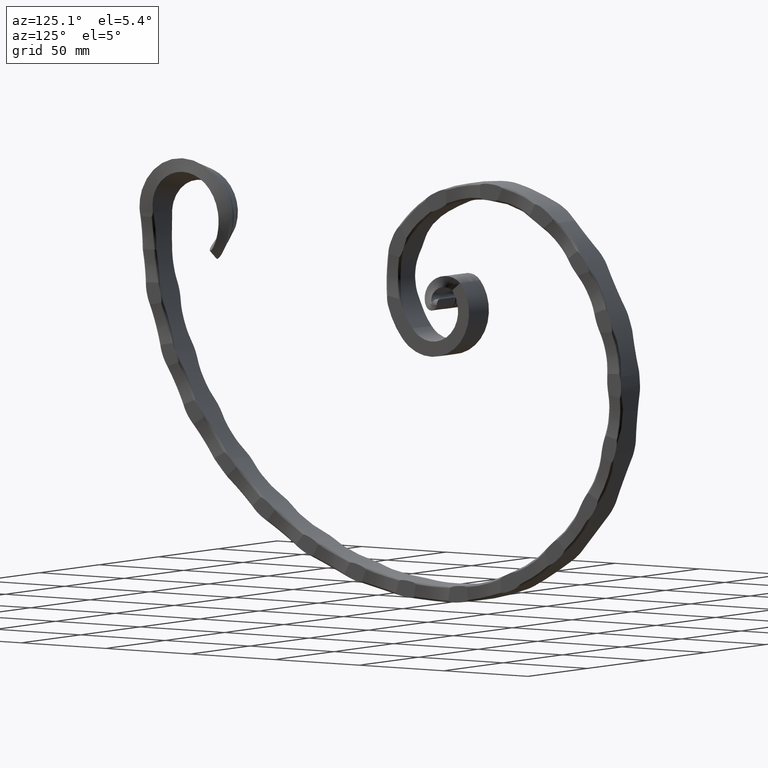
[diagram: clean part render]
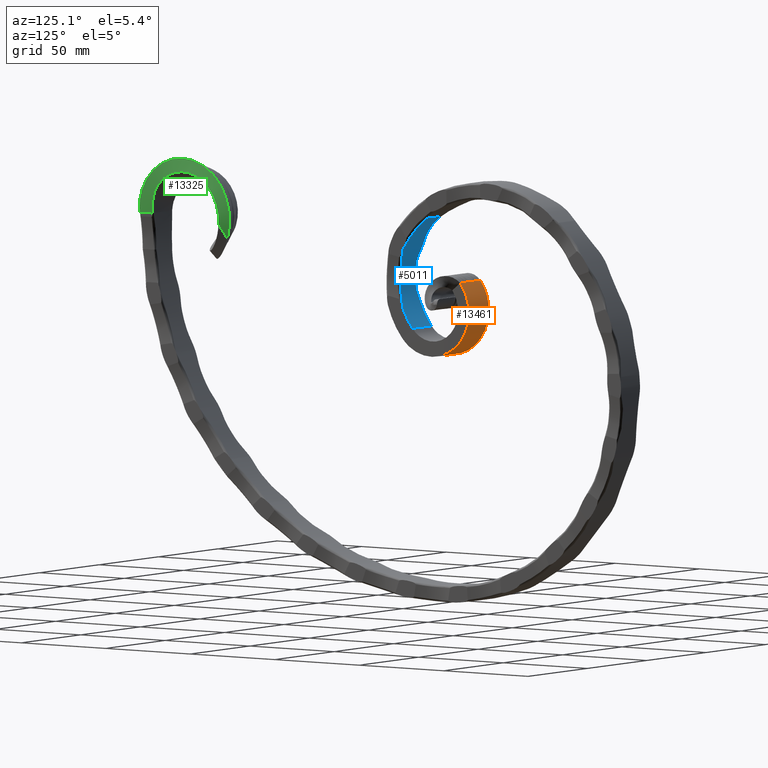
[diagram: same view with three faces highlighted in distinct colors, each labeled with its STEP entity id]
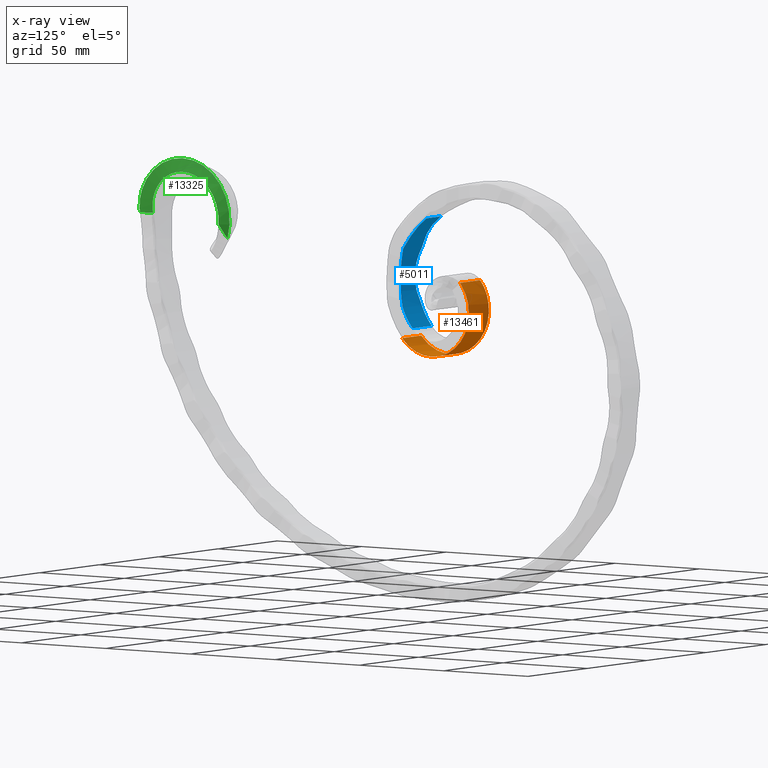
[diagram: x-ray of the same camera — body ghosted, the three highlighted faces saturated]
A machine part, auxiliary view with three faces highlighted in distinct colors.
The next image is the same camera in x-ray (body ghosted, the three faces saturated) — at least one of them is partly hidden behind the body in this view.
Their STEP definitions:

[orange] entity #13461 — the highlighted face is a freeform B-spline surface patch.
#313 = CARTESIAN_POINT ( 'NONE',  ( 1.504227517978284200, 190.0010750538671400, 53.36071729016551800 ) ) ;
#627 = CARTESIAN_POINT ( 'NONE',  ( 8.166600478617244400, 176.5207333990191500, 16.56066125691241100 ) ) ;
#691 = CARTESIAN_POINT ( 'NONE',  ( -2.501398153187990700, 190.0000000000000900, 53.36217639897318300 ) ) ;
#853 = CARTESIAN_POINT ( 'NONE',  ( -4.499295737616645100, 190.0000000000000000, 53.36217639897316900 ) ) ;
#894 = CARTESIAN_POINT ( 'NONE',  ( 4.509063854233861700, 190.0000000000000000, 53.36217639897316900 ) ) ;
#927 = ORIENTED_EDGE ( 'NONE', *, *, #7551, .T. ) ;
#974 = CARTESIAN_POINT ( 'NONE',  ( -8.371492826464118400, 195.2381940632237400, 36.40100705719835600 ) ) ;
#1402 = CARTESIAN_POINT ( 'NONE',  ( -8.489561530757466600, 190.8765782711007000, 52.17244712415904900 ) ) ;
#1410 = FACE_OUTER_BOUND ( 'NONE', #6916, .T. ) ;
#1490 = CARTESIAN_POINT ( 'NONE',  ( -8.093758625982955500, 166.2433932583059600, 17.27096361387858900 ) ) ;
#1582 = CARTESIAN_POINT ( 'NONE',  ( 8.250066486523588000, 187.2296649215452400, 21.49793674496783400 ) ) ;
#1725 = B_SPLINE_CURVE_WITH_KNOTS ( 'NONE', 3,
 ( #18268, #5945, #8007, #22441 ),
 .UNSPECIFIED., .F., .F.,
 ( 4, 4 ),
 ( 0.0000000000000000000, 1.086922710742409500E-006 ),
 .UNSPECIFIED. ) ;
#1927 = CARTESIAN_POINT ( 'NONE',  ( 4.509102991369862100, 190.0013979576507700, 53.36027903140551100 ) ) ;
#1993 = VERTEX_POINT ( 'NONE', #8462 ) ;
#2224 = CARTESIAN_POINT ( 'NONE',  ( -3.167379767285211800, 190.0005730431487100, 53.36139864046045000 ) ) ;
#2255 = CARTESIAN_POINT ( 'NONE',  ( -8.500000000000000000, 190.0000000000000000, 53.36217639897316900 ) ) ;
#2256 = VERTEX_POINT ( 'NONE', #19808 ) ;
#2538 = VERTEX_POINT ( 'NONE', #16517 ) ;
#2603 = CARTESIAN_POINT ( 'NONE',  ( 8.500000000000001800, 190.0000000000000600, 53.36217639897317600 ) ) ;
#2627 = ORIENTED_EDGE ( 'NONE', *, *, #7042, .T. ) ;
#2693 = CARTESIAN_POINT ( 'NONE',  ( 8.093758625982955500, 166.2433932583059600, 17.27096361387858900 ) ) ;
#2811 = EDGE_CURVE ( 'NONE', #1993, #24160, #26184, .T. ) ;
#2923 = CARTESIAN_POINT ( 'NONE',  ( -4.499300429775051000, 190.0004299150101300, 53.36159290005338800 ) ) ;
#3038 = CARTESIAN_POINT ( 'NONE',  ( -8.437596282033869200, 194.2992014653628400, 45.68952641944746100 ) ) ;
#3268 = EDGE_CURVE ( 'NONE', #18838, #22525, #6176, .T. ) ;
#3474 = CARTESIAN_POINT ( 'NONE',  ( -8.500000000000000000, 190.0000000000000000, 53.36217639897316900 ) ) ;
#3490 = CARTESIAN_POINT ( 'NONE',  ( 6.488271134172028300, 190.0010737567807800, 53.36071905064699900 ) ) ;
#3545 = VECTOR ( 'NONE', #22579, 1000.000000000000000 ) ;
#3564 = CARTESIAN_POINT ( 'NONE',  ( -8.031385994777158600, 158.4201030096489000, 21.36293725900646100 ) ) ;
#3650 = CARTESIAN_POINT ( 'NONE',  ( 8.166600478617244400, 176.5207333990191500, 16.56066125691241100 ) ) ;
#3683 = B_SPLINE_CURVE_WITH_KNOTS ( 'NONE', 3,
 ( #2603, #4680, #17008, #6763, #21169, #8821, #23253, #10901, #25299, #12976, #627, #15031, #2693, #17095, #4774, #19180, #6853 ),
 .UNSPECIFIED., .F., .F.,
 ( 4, 1, 1, 1, 1, 1, 1, 1, 1, 1, 1, 1, 1, 1, 4 ),
 ( 0.0000000000000000000, 0.06359726010367429400, 0.1276426326863242500, 0.1913667241665796300, 0.2546737413265557900, 0.3390879121470574700, 0.4228205871831891000, 0.5063595775084512900, 0.5895929023990300600, 0.6721705151691433900, 0.7547960793870937000, 0.8162611391492387000, 0.8776552787611422400, 0.9390498306199807100, 1.000000000000000000 ),
 .UNSPECIFIED. ) ;
#4209 = CARTESIAN_POINT ( 'NONE',  ( 2.830868357476861200, 190.0012176146330800, 53.36052380062761100 ) ) ;
#4365 = CARTESIAN_POINT ( 'NONE',  ( 3.494188777226149100, 190.0012888950154200, 53.36042705585799000 ) ) ;
#4393 = CARTESIAN_POINT ( 'NONE',  ( 3.494188777226149100, 190.0012888950154200, 53.36042705585799000 ) ) ;
#4523 = CARTESIAN_POINT ( 'NONE',  ( 8.000000000000000000, 155.3834050570477200, 24.60993553751039200 ) ) ;
#4680 = CARTESIAN_POINT ( 'NONE',  ( 8.489561530757466600, 190.8765782711007000, 52.17244712415904900 ) ) ;
#4685 = VERTEX_POINT ( 'NONE', #1927 ) ;
#4774 = CARTESIAN_POINT ( 'NONE',  ( 8.031385994777158600, 158.4201030096489000, 21.36293725900646100 ) ) ;
#4814 = B_SPLINE_CURVE_WITH_KNOTS ( 'NONE', 3,
 ( #10579, #8500, #12658, #313 ),
 .UNSPECIFIED., .F., .F.,
 ( 4, 4 ),
 ( 1.387778780781445700E-017, 1.812398786433405800E-006 ),
 .UNSPECIFIED. ) ;
#4867 = LINE ( 'NONE', #2255, #26412 ) ;
#4907 = EDGE_CURVE ( 'NONE', #25222, #20470, #15556, .T. ) ;
#5037 = CARTESIAN_POINT ( 'NONE',  ( -8.031385994777158600, 158.4201030096489000, 21.36293725900646100 ) ) ;
#5127 = CARTESIAN_POINT ( 'NONE',  ( -8.489561530757466600, 190.8765782711007000, 52.17244712415904900 ) ) ;
#5224 = B_SPLINE_CURVE_WITH_KNOTS ( 'NONE', 3,
 ( #20178, #18000, #9919, #24314 ),
 .UNSPECIFIED., .F., .F.,
 ( 4, 4 ),
 ( 0.0000000000000000000, 2.357078911604333100E-006 ),
 .UNSPECIFIED. ) ;
#5279 = CARTESIAN_POINT ( 'NONE',  ( 5.828521008972643400, 190.0015397422499500, 53.36008659530810400 ) ) ;
#5562 = CARTESIAN_POINT ( 'NONE',  ( -8.437596282033869200, 194.2992014653628400, 45.68952641944746100 ) ) ;
#5575 = CARTESIAN_POINT ( 'NONE',  ( 6.488353323249210500, 190.0000000000000900, 53.36217639897316200 ) ) ;
#5651 = CARTESIAN_POINT ( 'NONE',  ( -8.000000000000000000, 155.3834050570477200, 24.60993553751039500 ) ) ;
#5665 = CARTESIAN_POINT ( 'NONE',  ( -8.500000000000001800, 190.0000000000000600, 53.36217639897317600 ) ) ;
#5746 = CARTESIAN_POINT ( 'NONE',  ( 8.093758625982955500, 166.2433932583059600, 17.27096361387858900 ) ) ;
#5945 = CARTESIAN_POINT ( 'NONE',  ( -2.501412339625785900, 190.0004297381713900, 53.36159314006761200 ) ) ;
#5963 = EDGE_CURVE ( 'NONE', #13410, #7680, #13289, .T. ) ;
#6143 = B_SPLINE_CURVE_WITH_KNOTS ( 'NONE', 3,
 ( #4365, #9030, #25508, #13194 ),
 .UNSPECIFIED., .F., .F.,
 ( 4, 4 ),
 ( 0.0000000000000000000, 2.173927911987842600E-006 ),
 .UNSPECIFIED. ) ;
#6176 = B_SPLINE_CURVE_WITH_KNOTS ( 'NONE', 3,
 ( #7022, #17357, #5037, #19431, #7116, #21516, #9172, #23594, #11250, #25648, #13327, #974, #15371, #3038, #17447, #5127, #19526 ),
 .UNSPECIFIED., .F., .F.,
 ( 4, 1, 1, 1, 1, 1, 1, 1, 1, 1, 1, 1, 1, 1, 4 ),
 ( 0.0000000000000000000, 0.06095016938001929200, 0.1223447212388577600, 0.1837388608507613000, 0.2452039206129063000, 0.3278294848308566100, 0.4104070976009699400, 0.4936404224915487100, 0.5771794128168108400, 0.6609120878529425300, 0.7453262586734441500, 0.8086332758334203700, 0.8723573673136757500, 0.9364027398963257200, 1.000000000000000000 ),
 .UNSPECIFIED. ) ;
#6701 = EDGE_CURVE ( 'NONE', #7680, #10225, #24506, .T. ) ;
#6721 = ORIENTED_EDGE ( 'NONE', *, *, #6701, .T. ) ;
#6763 = CARTESIAN_POINT ( 'NONE',  ( 8.437596282033869200, 194.2992014653628400, 45.68952641944746100 ) ) ;
#6806 = CARTESIAN_POINT ( 'NONE',  ( -4.499297302693197900, 190.0001433049996300, 53.36198189933870900 ) ) ;
#6853 = CARTESIAN_POINT ( 'NONE',  ( 8.000000000000000000, 155.3834050570477200, 24.60993553751039200 ) ) ;
#6916 = EDGE_LOOP ( 'NONE', ( #16931, #18821, #10884, #17402, #21830, #25800, #2627, #20551, #14466, #15024, #6721, #17102, #927, #19100, #12617, #8161 ) ) ;
#7022 = CARTESIAN_POINT ( 'NONE',  ( -8.000000000000000000, 155.3834050570477200, 24.60993553751039500 ) ) ;
#7042 = EDGE_CURVE ( 'NONE', #19721, #18838, #15142, .T. ) ;
#7116 = CARTESIAN_POINT ( 'NONE',  ( -8.093758625982955500, 166.2433932583059600, 17.27096361387858900 ) ) ;
#7368 = CARTESIAN_POINT ( 'NONE',  ( -4.499295737616645100, 190.0000000000000000, 53.36217639897316900 ) ) ;
#7505 = CARTESIAN_POINT ( 'NONE',  ( -2.501419436040292200, 190.0006446072178200, 53.36130151066365100 ) ) ;
#7551 = EDGE_CURVE ( 'NONE', #18345, #2256, #4867, .T. ) ;
#7611 = EDGE_CURVE ( 'NONE', #24160, #19721, #3683, .T. ) ;
#7635 = CARTESIAN_POINT ( 'NONE',  ( -8.371492826464118400, 195.2381940632237400, 36.40100705719835600 ) ) ;
#7680 = VERTEX_POINT ( 'NONE', #15386 ) ;
#7720 = CARTESIAN_POINT ( 'NONE',  ( 8.489561530757466600, 190.8765782711007000, 52.17244712415904900 ) ) ;
#7808 = CARTESIAN_POINT ( 'NONE',  ( 8.031385994777158600, 158.4201030096489000, 21.36293725900646100 ) ) ;
#7977 = CARTESIAN_POINT ( 'NONE',  ( 0.0000000000000000000, 155.3834050570477200, 24.60993553751039500 ) ) ;
#8007 = CARTESIAN_POINT ( 'NONE',  ( -2.501405245335154500, 190.0002148690981600, 53.36188476950350400 ) ) ;
#8161 = ORIENTED_EDGE ( 'NONE', *, *, #8873, .T. ) ;
#8462 = CARTESIAN_POINT ( 'NONE',  ( 6.488353323249210500, 190.0000000000000900, 53.36217639897316200 ) ) ;
#8500 = CARTESIAN_POINT ( 'NONE',  ( 1.504222797207755800, 190.0003583513045300, 53.36169002935658100 ) ) ;
#8560 = EDGE_CURVE ( 'NONE', #2256, #25222, #4814, .T. ) ;
#8821 = CARTESIAN_POINT ( 'NONE',  ( 8.371492826464118400, 195.2381940632237400, 36.40100705719835600 ) ) ;
#8873 = EDGE_CURVE ( 'NONE', #20470, #2538, #6143, .T. ) ;
#9030 = CARTESIAN_POINT ( 'NONE',  ( 3.494211172092763100, 190.0008592634869200, 53.36101017005908200 ) ) ;
#9172 = CARTESIAN_POINT ( 'NONE',  ( -8.166600478617244400, 176.5207333990191500, 16.56066125691241100 ) ) ;
#9701 = CARTESIAN_POINT ( 'NONE',  ( -8.291695045305248300, 191.2778264671960400, 25.83727180326791700 ) ) ;
#9787 = CARTESIAN_POINT ( 'NONE',  ( 8.437596282033869200, 194.2992014653628400, 45.68952641944746100 ) ) ;
#9816 = EDGE_CURVE ( 'NONE', #4685, #23813, #17083, .T. ) ;
#9887 = CARTESIAN_POINT ( 'NONE',  ( 8.000000000000000000, 155.3834050570477200, 24.60993553751039500 ) ) ;
#9919 = CARTESIAN_POINT ( 'NONE',  ( 4.509089934481472100, 190.0009319718918700, 53.36091148712264200 ) ) ;
#10140 = EDGE_CURVE ( 'NONE', #2538, #12933, #12237, .T. ) ;
#10225 = VERTEX_POINT ( 'NONE', #7505 ) ;
#10579 = CARTESIAN_POINT ( 'NONE',  ( 1.504220444699004000, 190.0000000000000000, 53.36217639897316900 ) ) ;
#10884 = ORIENTED_EDGE ( 'NONE', *, *, #9816, .T. ) ;
#10901 = CARTESIAN_POINT ( 'NONE',  ( 8.291695045305248300, 191.2778264671960400, 25.83727180326791700 ) ) ;
#11205 = CARTESIAN_POINT ( 'NONE',  ( -8.500000000000000000, 190.0000000000000000, 53.36217639897316900 ) ) ;
#11250 = CARTESIAN_POINT ( 'NONE',  ( -8.250066486523588000, 187.2296649215452400, 21.49793674496783400 ) ) ;
#11354 = EDGE_CURVE ( 'NONE', #12933, #4685, #5224, .T. ) ;
#11615 = B_SPLINE_SURFACE_WITH_KNOTS ( 'NONE', 1, 3, ( 
 ( #3474, #1402, #17879, #5562, #19969, #7635, #22050, #9701, #24105, #11769, #26170, #13849, #1490, #15888, #3564, #17971, #5651 ),
 ( #20055, #7720, #22139, #9787, #24198, #11859, #26253, #13928, #1582, #15989, #3650, #18058, #5746, #20147, #7808, #22228, #9887 ) ),
 .UNSPECIFIED., .F., .F., .F.,
 ( 2, 2 ),
 ( 4, 1, 1, 1, 1, 1, 1, 1, 1, 1, 1, 1, 1, 1, 4 ),
 ( 0.0000000000000000000, 1.000000000000000000 ),
 ( 0.0000000000000000000, 0.06359726010367429400, 0.1276426326863242500, 0.1913667241665796300, 0.2546737413265557900, 0.3390879121470574700, 0.4228205871831891000, 0.5063595775084512900, 0.5895929023990300600, 0.6721705151691433900, 0.7547960793870937000, 0.8162611391492387000, 0.8776552787611422400, 0.9390498306199807100, 1.000000000000000000 ),
 .UNSPECIFIED. ) ;
#11769 = CARTESIAN_POINT ( 'NONE',  ( -8.208536372798436200, 182.2349688793455000, 18.31822524172173100 ) ) ;
#11859 = CARTESIAN_POINT ( 'NONE',  ( 8.371492826464118400, 195.2381940632237400, 36.40100705719835600 ) ) ;
#12237 = LINE ( 'NONE', #15591, #22566 ) ;
#12617 = ORIENTED_EDGE ( 'NONE', *, *, #4907, .T. ) ;
#12658 = CARTESIAN_POINT ( 'NONE',  ( 1.504225155002294900, 190.0007167025968000, 53.36120365975651900 ) ) ;
#12933 = VERTEX_POINT ( 'NONE', #894 ) ;
#12976 = CARTESIAN_POINT ( 'NONE',  ( 8.208536372798436200, 182.2349688793455000, 18.31822524172173100 ) ) ;
#13184 = EDGE_CURVE ( 'NONE', #10225, #18345, #1725, .T. ) ;
#13194 = CARTESIAN_POINT ( 'NONE',  ( 3.494255940246269200, 190.0000000000000600, 53.36217639897317600 ) ) ;
#13289 = B_SPLINE_CURVE_WITH_KNOTS ( 'NONE', 3,
 ( #853, #6806, #25524, #2923 ),
 .UNSPECIFIED., .F., .F.,
 ( 4, 4 ),
 ( 1.387778780781445500E-017, 7.247895706230657800E-007 ),
 .UNSPECIFIED. ) ;
#13327 = CARTESIAN_POINT ( 'NONE',  ( -8.333542805043757400, 194.0382526272320000, 31.12686324424689800 ) ) ;
#13379 = CARTESIAN_POINT ( 'NONE',  ( 4.509102991369862100, 190.0013979576507700, 53.36027903140551100 ) ) ;
#13410 = VERTEX_POINT ( 'NONE', #7368 ) ;
#13461 = ADVANCED_FACE ( 'NONE', ( #1410 ), #11615, .T. ) ;
#13849 = CARTESIAN_POINT ( 'NONE',  ( -8.128658068894436500, 171.1166898957365300, 16.34987807679231200 ) ) ;
#13928 = CARTESIAN_POINT ( 'NONE',  ( 8.291695045305248300, 191.2778264671960400, 25.83727180326791700 ) ) ;
#14466 = ORIENTED_EDGE ( 'NONE', *, *, #17739, .T. ) ;
#14491 = CARTESIAN_POINT ( 'NONE',  ( 2.167547937727573700, 190.0011463342502500, 53.36062054539670600 ) ) ;
#14614 = CARTESIAN_POINT ( 'NONE',  ( -8.000000000000000000, 155.3834050570477200, 24.60993553751039500 ) ) ;
#15024 = ORIENTED_EDGE ( 'NONE', *, *, #5963, .T. ) ;
#15031 = CARTESIAN_POINT ( 'NONE',  ( 8.128658068894436500, 171.1166898957365300, 16.34987807679231200 ) ) ;
#15142 = LINE ( 'NONE', #7977, #3545 ) ;
#15371 = CARTESIAN_POINT ( 'NONE',  ( -8.406365414061744100, 195.2191097612029300, 41.35688859259064300 ) ) ;
#15386 = CARTESIAN_POINT ( 'NONE',  ( -4.499300429775051000, 190.0004299150101300, 53.36159290005338800 ) ) ;
#15556 = B_SPLINE_CURVE_WITH_KNOTS ( 'NONE', 3,
 ( #16716, #14491, #4209, #4393 ),
 .UNSPECIFIED., .F., .F.,
 ( 4, 4 ),
 ( 1.612498314674328000E-005, 0.002006086275049512100 ),
 .UNSPECIFIED. ) ;
#15591 = CARTESIAN_POINT ( 'NONE',  ( -8.500000000000000000, 190.0000000000000000, 53.36217639897316900 ) ) ;
#15815 = CARTESIAN_POINT ( 'NONE',  ( 6.488230017774035300, 190.0016106345489100, 53.35999037725862600 ) ) ;
#15859 = VECTOR ( 'NONE', #21943, 1000.000000000000000 ) ;
#15888 = CARTESIAN_POINT ( 'NONE',  ( -8.062485535807109500, 162.1474824929379100, 18.96881313957539900 ) ) ;
#15989 = CARTESIAN_POINT ( 'NONE',  ( 8.208536372798436200, 182.2349688793455000, 18.31822524172173100 ) ) ;
#16448 = CARTESIAN_POINT ( 'NONE',  ( -4.499300429775051000, 190.0004299150101300, 53.36159290005338800 ) ) ;
#16517 = CARTESIAN_POINT ( 'NONE',  ( 3.494255940246269200, 190.0000000000000600, 53.36217639897317600 ) ) ;
#16620 = CARTESIAN_POINT ( 'NONE',  ( -2.501419436040292200, 190.0006446072178200, 53.36130151066365100 ) ) ;
#16658 = DIRECTION ( 'NONE',  ( 1.000000000000000000, 0.0000000000000000000, 0.0000000000000000000 ) ) ;
#16716 = CARTESIAN_POINT ( 'NONE',  ( 1.504227517978284200, 190.0010750538671400, 53.36071729016551800 ) ) ;
#16785 = CARTESIAN_POINT ( 'NONE',  ( 6.488230017774035300, 190.0016106345489100, 53.35999037725862600 ) ) ;
#16931 = ORIENTED_EDGE ( 'NONE', *, *, #10140, .T. ) ;
#17008 = CARTESIAN_POINT ( 'NONE',  ( 8.468611041803066900, 192.6359112690398700, 49.78460562636951900 ) ) ;
#17083 = B_SPLINE_CURVE_WITH_KNOTS ( 'NONE', 3,
 ( #13379, #17594, #5279, #19679 ),
 .UNSPECIFIED., .F., .F.,
 ( 4, 4 ),
 ( 2.096965913195031600E-005, 0.002000096718013239800 ),
 .UNSPECIFIED. ) ;
#17095 = CARTESIAN_POINT ( 'NONE',  ( 8.062485535807109500, 162.1474824929379100, 18.96881313957539900 ) ) ;
#17102 = ORIENTED_EDGE ( 'NONE', *, *, #13184, .T. ) ;
#17357 = CARTESIAN_POINT ( 'NONE',  ( -8.010436634056571100, 156.3931836381204100, 23.53022679940406500 ) ) ;
#17402 = ORIENTED_EDGE ( 'NONE', *, *, #19177, .T. ) ;
#17438 = CARTESIAN_POINT ( 'NONE',  ( 1.504227517978284200, 190.0010750538671400, 53.36071729016551800 ) ) ;
#17447 = CARTESIAN_POINT ( 'NONE',  ( -8.468611041803066900, 192.6359112690398700, 49.78460562636951900 ) ) ;
#17594 = CARTESIAN_POINT ( 'NONE',  ( 5.168812000171254100, 190.0014688499506700, 53.36018281335707800 ) ) ;
#17664 = DIRECTION ( 'NONE',  ( 1.000000000000000000, 0.0000000000000000000, 0.0000000000000000000 ) ) ;
#17739 = EDGE_CURVE ( 'NONE', #22525, #13410, #23265, .T. ) ;
#17879 = CARTESIAN_POINT ( 'NONE',  ( -8.468611041803066900, 192.6359112690398700, 49.78460562636951900 ) ) ;
#17897 = CARTESIAN_POINT ( 'NONE',  ( 6.488312236171626800, 190.0005368785912500, 53.36144772453746300 ) ) ;
#17971 = CARTESIAN_POINT ( 'NONE',  ( -8.010436634056571100, 156.3931836381204100, 23.53022679940406500 ) ) ;
#18000 = CARTESIAN_POINT ( 'NONE',  ( 4.509076888661674300, 190.0004659860019800, 53.36154394297184200 ) ) ;
#18058 = CARTESIAN_POINT ( 'NONE',  ( 8.128658068894436500, 171.1166898957365300, 16.34987807679231200 ) ) ;
#18268 = CARTESIAN_POINT ( 'NONE',  ( -2.501419436040292200, 190.0006446072178200, 53.36130151066365100 ) ) ;
#18345 = VERTEX_POINT ( 'NONE', #691 ) ;
#18524 = CARTESIAN_POINT ( 'NONE',  ( -3.833340098530131400, 190.0005014790795600, 53.36149577025698700 ) ) ;
#18821 = ORIENTED_EDGE ( 'NONE', *, *, #11354, .T. ) ;
#18838 = VERTEX_POINT ( 'NONE', #14614 ) ;
#19100 = ORIENTED_EDGE ( 'NONE', *, *, #8560, .T. ) ;
#19177 = EDGE_CURVE ( 'NONE', #23813, #1993, #22936, .T. ) ;
#19180 = CARTESIAN_POINT ( 'NONE',  ( 8.010436634056571100, 156.3931836381204100, 23.53022679940406500 ) ) ;
#19295 = DIRECTION ( 'NONE',  ( 1.000000000000000000, 0.0000000000000000000, 0.0000000000000000000 ) ) ;
#19431 = CARTESIAN_POINT ( 'NONE',  ( -8.062485535807109500, 162.1474824929379100, 18.96881313957539900 ) ) ;
#19526 = CARTESIAN_POINT ( 'NONE',  ( -8.500000000000001800, 190.0000000000000600, 53.36217639897317600 ) ) ;
#19679 = CARTESIAN_POINT ( 'NONE',  ( 6.488230017774035300, 190.0016106345489100, 53.35999037725862600 ) ) ;
#19721 = VERTEX_POINT ( 'NONE', #4523 ) ;
#19808 = CARTESIAN_POINT ( 'NONE',  ( 1.504220444699004000, 190.0000000000000000, 53.36217639897316900 ) ) ;
#19969 = CARTESIAN_POINT ( 'NONE',  ( -8.406365414061744100, 195.2191097612029300, 41.35688859259064300 ) ) ;
#20055 = CARTESIAN_POINT ( 'NONE',  ( 8.500000000000000000, 190.0000000000000000, 53.36217639897316900 ) ) ;
#20147 = CARTESIAN_POINT ( 'NONE',  ( 8.062485535807109500, 162.1474824929379100, 18.96881313957539900 ) ) ;
#20178 = CARTESIAN_POINT ( 'NONE',  ( 4.509063854233861700, 190.0000000000000000, 53.36217639897316900 ) ) ;
#20248 = CARTESIAN_POINT ( 'NONE',  ( 8.500000000000001800, 190.0000000000000600, 53.36217639897317600 ) ) ;
#20470 = VERTEX_POINT ( 'NONE', #22681 ) ;
#20551 = ORIENTED_EDGE ( 'NONE', *, *, #3268, .T. ) ;
#21169 = CARTESIAN_POINT ( 'NONE',  ( 8.406365414061744100, 195.2191097612029300, 41.35688859259064300 ) ) ;
#21516 = CARTESIAN_POINT ( 'NONE',  ( -8.128658068894436500, 171.1166898957365300, 16.34987807679231200 ) ) ;
#21830 = ORIENTED_EDGE ( 'NONE', *, *, #2811, .T. ) ;
#21943 = DIRECTION ( 'NONE',  ( 1.000000000000000000, 0.0000000000000000000, 0.0000000000000000000 ) ) ;
#22050 = CARTESIAN_POINT ( 'NONE',  ( -8.333542805043757400, 194.0382526272320000, 31.12686324424689800 ) ) ;
#22139 = CARTESIAN_POINT ( 'NONE',  ( 8.468611041803066900, 192.6359112690398700, 49.78460562636951900 ) ) ;
#22228 = CARTESIAN_POINT ( 'NONE',  ( 8.010436634056571100, 156.3931836381204100, 23.53022679940406500 ) ) ;
#22441 = CARTESIAN_POINT ( 'NONE',  ( -2.501398153187990700, 190.0000000000000900, 53.36217639897318300 ) ) ;
#22525 = VERTEX_POINT ( 'NONE', #5665 ) ;
#22566 = VECTOR ( 'NONE', #17664, 1000.000000000000000 ) ;
#22579 = DIRECTION ( 'NONE',  ( -1.000000000000000000, -0.0000000000000000000, -0.0000000000000000000 ) ) ;
#22627 = VECTOR ( 'NONE', #19295, 1000.000000000000000 ) ;
#22681 = CARTESIAN_POINT ( 'NONE',  ( 3.494188777226149100, 190.0012888950154200, 53.36042705585799000 ) ) ;
#22936 = B_SPLINE_CURVE_WITH_KNOTS ( 'NONE', 3,
 ( #15815, #3490, #17897, #5575 ),
 .UNSPECIFIED., .F., .F.,
 ( 4, 4 ),
 ( 0.0000000000000000000, 2.718094705203744500E-006 ),
 .UNSPECIFIED. ) ;
#23253 = CARTESIAN_POINT ( 'NONE',  ( 8.333542805043757400, 194.0382526272320000, 31.12686324424689800 ) ) ;
#23265 = LINE ( 'NONE', #11205, #22627 ) ;
#23594 = CARTESIAN_POINT ( 'NONE',  ( -8.208536372798436200, 182.2349688793455000, 18.31822524172173100 ) ) ;
#23813 = VERTEX_POINT ( 'NONE', #16785 ) ;
#24001 = CARTESIAN_POINT ( 'NONE',  ( -8.500000000000000000, 190.0000000000000000, 53.36217639897316900 ) ) ;
#24105 = CARTESIAN_POINT ( 'NONE',  ( -8.250066486523588000, 187.2296649215452400, 21.49793674496783400 ) ) ;
#24160 = VERTEX_POINT ( 'NONE', #20248 ) ;
#24198 = CARTESIAN_POINT ( 'NONE',  ( 8.406365414061744100, 195.2191097612029300, 41.35688859259064300 ) ) ;
#24314 = CARTESIAN_POINT ( 'NONE',  ( 4.509102991369862100, 190.0013979576507700, 53.36027903140551100 ) ) ;
#24506 = B_SPLINE_CURVE_WITH_KNOTS ( 'NONE', 3,
 ( #16448, #18524, #2224, #16620 ),
 .UNSPECIFIED., .F., .F.,
 ( 4, 4 ),
 ( 1.265863030818767900E-005, 0.002010539656827812600 ),
 .UNSPECIFIED. ) ;
#25222 = VERTEX_POINT ( 'NONE', #17438 ) ;
#25299 = CARTESIAN_POINT ( 'NONE',  ( 8.250066486523588000, 187.2296649215452400, 21.49793674496783400 ) ) ;
#25508 = CARTESIAN_POINT ( 'NONE',  ( 3.494233559829697600, 190.0004296318105300, 53.36159328442510500 ) ) ;
#25524 = CARTESIAN_POINT ( 'NONE',  ( -4.499298866744178200, 190.0002866100032600, 53.36178739969892600 ) ) ;
#25648 = CARTESIAN_POINT ( 'NONE',  ( -8.291695045305248300, 191.2778264671960400, 25.83727180326791700 ) ) ;
#25800 = ORIENTED_EDGE ( 'NONE', *, *, #7611, .T. ) ;
#26170 = CARTESIAN_POINT ( 'NONE',  ( -8.166600478617244400, 176.5207333990191500, 16.56066125691241100 ) ) ;
#26184 = LINE ( 'NONE', #24001, #15859 ) ;
#26253 = CARTESIAN_POINT ( 'NONE',  ( 8.333542805043757400, 194.0382526272320000, 31.12686324424689800 ) ) ;
#26412 = VECTOR ( 'NONE', #16658, 1000.000000000000000 ) ;

[blue] entity #5011 — the highlighted cylindrical surface (partial cylindrical patch) has radius 37 mm, axis along (1, 0, 0).
#11 = DIRECTION ( 'NONE',  ( 1.000000000000000000, 0.0000000000000000000, 0.0000000000000000000 ) ) ;
#76 = CARTESIAN_POINT ( 'NONE',  ( -6.175704181871243000, 153.3254263864630500, 58.40598720853309800 ) ) ;
#147 = ORIENTED_EDGE ( 'NONE', *, *, #19459, .F. ) ;
#172 = DIRECTION ( 'NONE',  ( 1.000000000000000000, 0.0000000000000000000, 0.0000000000000000000 ) ) ;
#268 = VERTEX_POINT ( 'NONE', #6896 ) ;
#959 = LINE ( 'NONE', #9820, #22257 ) ;
#1008 = CARTESIAN_POINT ( 'NONE',  ( 7.659774982977995500, 155.4034655850979300, 66.53291289966888700 ) ) ;
#1100 = CARTESIAN_POINT ( 'NONE',  ( 7.360070848551255400, 154.9983950792139600, 65.41723976696356100 ) ) ;
#1103 = CARTESIAN_POINT ( 'NONE',  ( 6.112526113137921200, 162.3777838454629400, 78.03276811793090000 ) ) ;
#1195 = CARTESIAN_POINT ( 'NONE',  ( 7.436587524345784000, 154.8701599593773900, 41.68625491000715800 ) ) ;
#1649 = CIRCLE ( 'NONE', #10221, 36.99999999999997900 ) ;
#1875 = CARTESIAN_POINT ( 'NONE',  ( -6.692164802359739500, 159.4085774920783400, 74.19040775138466900 ) ) ;
#2125 = CARTESIAN_POINT ( 'NONE',  ( -6.547423329522867900, 153.8702031179155100, 61.36209545876374000 ) ) ;
#2660 = CARTESIAN_POINT ( 'NONE',  ( 0.0000000000000000000, 190.0000000000000000, 53.36217639897318300 ) ) ;
#2820 = CIRCLE ( 'NONE', #10247, 36.99999999999997900 ) ;
#2975 = CARTESIAN_POINT ( 'NONE',  ( -8.000000000000003600, 190.0000000000000000, 53.36217639897318300 ) ) ;
#3164 = CARTESIAN_POINT ( 'NONE',  ( 6.633104087849703800, 153.9937731440235200, 61.96379297716603000 ) ) ;
#3166 = CARTESIAN_POINT ( 'NONE',  ( 6.460297641487685800, 160.3451334177499900, 75.50352324862760200 ) ) ;
#3260 = CARTESIAN_POINT ( 'NONE',  ( 8.000000000000003600, 155.7115702938201000, 39.45881032149549800 ) ) ;
#3742 = ORIENTED_EDGE ( 'NONE', *, *, #25433, .T. ) ;
#3792 = CARTESIAN_POINT ( 'NONE',  ( 8.000000000000003600, 156.3005263019955500, 68.63782605708932700 ) ) ;
#3868 = CARTESIAN_POINT ( 'NONE',  ( -7.607253090097208800, 156.9562593999171200, 70.08443296290936100 ) ) ;
#3941 = CIRCLE ( 'NONE', #11386, 36.99999999999997900 ) ;
#3951 = CARTESIAN_POINT ( 'NONE',  ( -6.359663610972024400, 160.8397585088719100, 76.15113307631932600 ) ) ;
#4072 = EDGE_CURVE ( 'NONE', #268, #25175, #21517, .T. ) ;
#4114 = CARTESIAN_POINT ( 'NONE',  ( -7.705323934385692300, 155.2637750674085500, 40.56316124328051100 ) ) ;
#4197 = CARTESIAN_POINT ( 'NONE',  ( -6.854427543024177900, 154.3024805607636600, 63.11143273603701700 ) ) ;
#4198 = VECTOR ( 'NONE', #19599, 1000.000000000000000 ) ;
#4347 = B_SPLINE_CURVE_WITH_KNOTS ( 'NONE', 3,
 ( #16440, #4114, #6193, #20601, #8262, #22685, #10351, #24750, #12418, #76, #14480, #2125, #16529, #4197, #18606, #6281, #20683, #8348 ),
 .UNSPECIFIED., .F., .F.,
 ( 4, 2, 2, 2, 2, 2, 2, 2, 4 ),
 ( 7.152448122690996000E-018, 0.003678488004995040100, 0.007356976009990073300, 0.01471395201998015500, 0.01839244002497519800, 0.02207092802997023800, 0.02391017203246773700, 0.02574941603496523600, 0.02942790403996020000 ),
 .UNSPECIFIED. ) ;
#4852 = LINE ( 'NONE', #5197, #4198 ) ;
#5011 = ADVANCED_FACE ( 'NONE', ( #24534 ), #23900, .F. ) ;
#5060 = DIRECTION ( 'NONE',  ( 0.0000000000000000000, 0.0000000000000000000, -1.000000000000000000 ) ) ;
#5117 = CARTESIAN_POINT ( 'NONE',  ( -6.190617435721033100, 168.4004087444117500, 83.40310943360968600 ) ) ;
#5131 = CARTESIAN_POINT ( 'NONE',  ( -8.000000000000003600, 155.8575442632841500, 67.62025187452026400 ) ) ;
#5197 = CARTESIAN_POINT ( 'NONE',  ( 0.0000000000000000000, 161.5374663802392400, 29.72144502399267900 ) ) ;
#5258 = CARTESIAN_POINT ( 'NONE',  ( 6.177795274964212900, 153.3286319637779500, 58.42854418728598600 ) ) ;
#5262 = CARTESIAN_POINT ( 'NONE',  ( 6.823631326884760800, 158.9646379038420300, 73.52262948664115100 ) ) ;
#5417 = CARTESIAN_POINT ( 'NONE',  ( -8.000000000000003600, 161.5374663802392400, 29.72144502399267600 ) ) ;
#6034 = CARTESIAN_POINT ( 'NONE',  ( -8.000000000000003600, 155.7115702938201000, 39.45881032149549800 ) ) ;
#6039 = CARTESIAN_POINT ( 'NONE',  ( -6.019228754286241500, 163.4781586907690500, 79.21156161217422200 ) ) ;
#6193 = CARTESIAN_POINT ( 'NONE',  ( -7.434782487098805100, 154.8675090625756400, 41.69370274508489900 ) ) ;
#6217 = AXIS2_PLACEMENT_3D ( 'NONE', #2975, #17383, #5060 ) ;
#6281 = CARTESIAN_POINT ( 'NONE',  ( -7.358863161435506200, 154.9967618913032700, 65.41272103738651800 ) ) ;
#6896 = CARTESIAN_POINT ( 'NONE',  ( -8.000000000000003600, 156.3005263019955700, 68.63782605708935600 ) ) ;
#7332 = CARTESIAN_POINT ( 'NONE',  ( 5.990465066828690500, 153.0080837079018200, 54.81190623571016100 ) ) ;
#7334 = CARTESIAN_POINT ( 'NONE',  ( 7.607253090097227500, 156.9562593999171200, 70.08443296290933200 ) ) ;
#7406 = B_SPLINE_CURVE_WITH_KNOTS ( 'NONE', 3,
 ( #23721, #1008, #1100, #15497, #3164, #17574, #5258, #19661, #7332, #21743, #9389, #23808, #11463, #25865, #13544, #1195, #15588, #3260 ),
 .UNSPECIFIED., .F., .F.,
 ( 4, 2, 2, 2, 2, 2, 2, 2, 4 ),
 ( 0.0000000000000000000, 0.003672520457425972800, 0.007345040914851945700, 0.01101756137227791900, 0.01469008182970389100, 0.02203512274455585500, 0.02387138297326885400, 0.02570764320198185400, 0.02938016365940787300 ),
 .UNSPECIFIED. ) ;
#7739 = CARTESIAN_POINT ( 'NONE',  ( 6.190617435721030400, 168.4004087444117500, 83.40310943360968600 ) ) ;
#8106 = CARTESIAN_POINT ( 'NONE',  ( -6.046204539210119600, 167.0752247516575400, 82.45029506699408700 ) ) ;
#8262 = CARTESIAN_POINT ( 'NONE',  ( -6.746619432915380800, 153.8999186400364700, 45.16336925373617100 ) ) ;
#8348 = CARTESIAN_POINT ( 'NONE',  ( -8.000000000000003600, 155.8575442632841500, 67.62025187452026400 ) ) ;
#8541 = ORIENTED_EDGE ( 'NONE', *, *, #21005, .T. ) ;
#9347 = DIRECTION ( 'NONE',  ( 1.000000000000000000, 0.0000000000000000000, 0.0000000000000000000 ) ) ;
#9389 = CARTESIAN_POINT ( 'NONE',  ( 6.226638321539572200, 153.2125746424482300, 48.72077662519841100 ) ) ;
#9445 = EDGE_CURVE ( 'NONE', #25175, #20320, #959, .T. ) ;
#9820 = CARTESIAN_POINT ( 'NONE',  ( 8.000000000000003600, 168.4004087444117500, 83.40310943360968600 ) ) ;
#10093 = EDGE_CURVE ( 'NONE', #20320, #23308, #22738, .T. ) ;
#10221 = AXIS2_PLACEMENT_3D ( 'NONE', #21696, #9347, #23766 ) ;
#10247 = AXIS2_PLACEMENT_3D ( 'NONE', #12507, #172, #14570 ) ;
#10351 = CARTESIAN_POINT ( 'NONE',  ( -6.028275756611944500, 152.9879105721209700, 51.09514113652824100 ) ) ;
#10528 = DIRECTION ( 'NONE',  ( 0.0000000000000000000, 0.0000000000000000000, -1.000000000000000000 ) ) ;
#11203 = AXIS2_PLACEMENT_3D ( 'NONE', #2660, #15093, #10528 ) ;
#11265 = ORIENTED_EDGE ( 'NONE', *, *, #16782, .F. ) ;
#11379 = CARTESIAN_POINT ( 'NONE',  ( 6.046204539210117800, 167.0752247516576000, 82.45029506699411600 ) ) ;
#11386 = AXIS2_PLACEMENT_3D ( 'NONE', #12344, #11, #14404 ) ;
#11425 = VERTEX_POINT ( 'NONE', #6034 ) ;
#11463 = CARTESIAN_POINT ( 'NONE',  ( 6.756947013177823500, 153.9160182193875200, 45.15793857522044900 ) ) ;
#11490 = VERTEX_POINT ( 'NONE', #18616 ) ;
#11627 = ORIENTED_EDGE ( 'NONE', *, *, #15789, .T. ) ;
#12344 = CARTESIAN_POINT ( 'NONE',  ( 8.000000000000003600, 190.0000000000000000, 53.36217639897318300 ) ) ;
#12418 = CARTESIAN_POINT ( 'NONE',  ( -6.022041163671145700, 153.0742306900783900, 55.99882921795150300 ) ) ;
#12507 = CARTESIAN_POINT ( 'NONE',  ( 8.000000000000003600, 190.0000000000000000, 53.36217639897318300 ) ) ;
#12824 = EDGE_LOOP ( 'NONE', ( #12835, #3742, #11265, #20970, #15733, #24478, #11627, #21018, #8541, #147 ) ) ;
#12835 = ORIENTED_EDGE ( 'NONE', *, *, #18316, .F. ) ;
#13455 = CARTESIAN_POINT ( 'NONE',  ( 6.019228754286239700, 163.4781586907690800, 79.21156161217419400 ) ) ;
#13544 = CARTESIAN_POINT ( 'NONE',  ( 7.077519750092891500, 154.3592485967628500, 43.40752721446102000 ) ) ;
#13930 = CIRCLE ( 'NONE', #6217, 36.99999999999997900 ) ;
#14226 = CARTESIAN_POINT ( 'NONE',  ( -6.823631326884754600, 158.9646379038420000, 73.52262948664117900 ) ) ;
#14404 = DIRECTION ( 'NONE',  ( 0.0000000000000000000, 0.0000000000000000000, -1.000000000000000000 ) ) ;
#14480 = CARTESIAN_POINT ( 'NONE',  ( -6.297258925849648700, 153.5091880504328400, 59.59630457193089400 ) ) ;
#14570 = DIRECTION ( 'NONE',  ( 0.0000000000000000000, 0.0000000000000000000, -1.000000000000000000 ) ) ;
#15093 = DIRECTION ( 'NONE',  ( 1.000000000000000000, 0.0000000000000000000, 0.0000000000000000000 ) ) ;
#15497 = CARTESIAN_POINT ( 'NONE',  ( 6.845240323525801300, 154.2915043921648500, 63.12640915235820700 ) ) ;
#15500 = CARTESIAN_POINT ( 'NONE',  ( 6.359663610972034100, 160.8397585088718800, 76.15113307631929700 ) ) ;
#15588 = CARTESIAN_POINT ( 'NONE',  ( 7.705723212408711800, 155.2643818177136000, 40.56166487793492300 ) ) ;
#15733 = ORIENTED_EDGE ( 'NONE', *, *, #9445, .T. ) ;
#15789 = EDGE_CURVE ( 'NONE', #23308, #17869, #3941, .T. ) ;
#16284 = CARTESIAN_POINT ( 'NONE',  ( -6.460297641487683200, 160.3451334177499600, 75.50352324862760200 ) ) ;
#16440 = CARTESIAN_POINT ( 'NONE',  ( -8.000000000000003600, 155.7115702938201000, 39.45881032149549800 ) ) ;
#16529 = CARTESIAN_POINT ( 'NONE',  ( -6.642127582429754500, 154.0047959375273800, 61.94740660796538400 ) ) ;
#16782 = EDGE_CURVE ( 'NONE', #268, #26476, #13930, .T. ) ;
#17129 = CARTESIAN_POINT ( 'NONE',  ( 8.000000000000003600, 161.5374663802392400, 29.72144502399267600 ) ) ;
#17383 = DIRECTION ( 'NONE',  ( 1.000000000000000000, 0.0000000000000000000, 0.0000000000000000000 ) ) ;
#17574 = CARTESIAN_POINT ( 'NONE',  ( 6.299585957361529200, 153.5126219985249100, 59.61576950532102600 ) ) ;
#17576 = CARTESIAN_POINT ( 'NONE',  ( 6.692164802359742200, 159.4085774920783400, 74.19040775138466900 ) ) ;
#17869 = VERTEX_POINT ( 'NONE', #25306 ) ;
#18316 = EDGE_CURVE ( 'NONE', #11425, #20902, #1649, .T. ) ;
#18357 = CARTESIAN_POINT ( 'NONE',  ( -6.112526113137913200, 162.3777838454629100, 78.03276811793088500 ) ) ;
#18606 = CARTESIAN_POINT ( 'NONE',  ( -6.972281183092384500, 154.4659258674298900, 63.69126888501172300 ) ) ;
#18616 = CARTESIAN_POINT ( 'NONE',  ( 8.000000000000003600, 155.7115702938201000, 39.45881032149549800 ) ) ;
#19459 = EDGE_CURVE ( 'NONE', #20902, #21551, #4852, .T. ) ;
#19599 = DIRECTION ( 'NONE',  ( 1.000000000000000000, 0.0000000000000000000, 0.0000000000000000000 ) ) ;
#19661 = CARTESIAN_POINT ( 'NONE',  ( 6.023225730043833400, 153.0763754130477100, 56.02737124669342000 ) ) ;
#19664 = CARTESIAN_POINT ( 'NONE',  ( 7.260149953204661200, 157.7033673358931500, 71.48613278599189900 ) ) ;
#19797 = EDGE_CURVE ( 'NONE', #17869, #11490, #7406, .T. ) ;
#20320 = VERTEX_POINT ( 'NONE', #7739 ) ;
#20447 = CARTESIAN_POINT ( 'NONE',  ( -5.986105765431569000, 165.8268862440138500, 81.42031877641217400 ) ) ;
#20601 = CARTESIAN_POINT ( 'NONE',  ( -6.954414565739435600, 154.1841677886564000, 43.99887784084873500 ) ) ;
#20683 = CARTESIAN_POINT ( 'NONE',  ( -7.659065879357557400, 155.4025191854547400, 66.53064664655450100 ) ) ;
#20902 = VERTEX_POINT ( 'NONE', #5417 ) ;
#20970 = ORIENTED_EDGE ( 'NONE', *, *, #4072, .T. ) ;
#21005 = EDGE_CURVE ( 'NONE', #11490, #21551, #2820, .T. ) ;
#21018 = ORIENTED_EDGE ( 'NONE', *, *, #19797, .T. ) ;
#21517 = B_SPLINE_CURVE_WITH_KNOTS ( 'NONE', 3,
 ( #26468, #3868, #26558, #14226, #1875, #16284, #3951, #18357, #6039, #20447, #8106, #22530 ),
 .UNSPECIFIED., .F., .F.,
 ( 4, 2, 2, 2, 2, 4 ),
 ( 0.0000000000000000000, 0.004869277847021649000, 0.007303916770532490000, 0.009738555694043330900, 0.01460783354106498500, 0.01947711138808663800 ),
 .UNSPECIFIED. ) ;
#21551 = VERTEX_POINT ( 'NONE', #17129 ) ;
#21696 = CARTESIAN_POINT ( 'NONE',  ( -8.000000000000003600, 190.0000000000000000, 53.36217639897318300 ) ) ;
#21743 = CARTESIAN_POINT ( 'NONE',  ( 6.026237182970058700, 152.9858584841580300, 51.13334753840094700 ) ) ;
#21747 = CARTESIAN_POINT ( 'NONE',  ( 8.000000000000003600, 156.3005263019955500, 68.63782605708932700 ) ) ;
#22257 = VECTOR ( 'NONE', #24224, 1000.000000000000000 ) ;
#22530 = CARTESIAN_POINT ( 'NONE',  ( -6.190617435721033100, 168.4004087444117500, 83.40310943360968600 ) ) ;
#22685 = CARTESIAN_POINT ( 'NONE',  ( -6.230446995671098200, 153.2175600269003700, 48.69341201977847800 ) ) ;
#22738 = B_SPLINE_CURVE_WITH_KNOTS ( 'NONE', 3,
 ( #23723, #11379, #25776, #13455, #1103, #15500, #3166, #17576, #5262, #19664, #7334, #21747 ),
 .UNSPECIFIED., .F., .F.,
 ( 4, 2, 2, 2, 2, 4 ),
 ( 0.0000000000000000000, 0.004835823058584938500, 0.009671646117169877000, 0.01208955764646237200, 0.01450746917575486800, 0.01934329223433982300 ),
 .UNSPECIFIED. ) ;
#23308 = VERTEX_POINT ( 'NONE', #3792 ) ;
#23721 = CARTESIAN_POINT ( 'NONE',  ( 8.000000000000003600, 155.8575442632928200, 67.62025187454101200 ) ) ;
#23723 = CARTESIAN_POINT ( 'NONE',  ( 6.190617435721030400, 168.4004087444117500, 83.40310943360968600 ) ) ;
#23766 = DIRECTION ( 'NONE',  ( 0.0000000000000000000, 0.0000000000000000000, -1.000000000000000000 ) ) ;
#23808 = CARTESIAN_POINT ( 'NONE',  ( 6.660724418149022200, 153.7863566601247400, 45.75046735494775900 ) ) ;
#23900 = CYLINDRICAL_SURFACE ( 'NONE', #11203, 36.99999999999997900 ) ;
#24224 = DIRECTION ( 'NONE',  ( 1.000000000000000000, 0.0000000000000000000, 0.0000000000000000000 ) ) ;
#24478 = ORIENTED_EDGE ( 'NONE', *, *, #10093, .T. ) ;
#24534 = FACE_OUTER_BOUND ( 'NONE', #12824, .T. ) ;
#24750 = CARTESIAN_POINT ( 'NONE',  ( -5.989961144042337300, 153.0067718304868500, 54.77978804288568400 ) ) ;
#25175 = VERTEX_POINT ( 'NONE', #5117 ) ;
#25306 = CARTESIAN_POINT ( 'NONE',  ( 8.000000000000003600, 155.8575442632928200, 67.62025187454101200 ) ) ;
#25433 = EDGE_CURVE ( 'NONE', #11425, #26476, #4347, .T. ) ;
#25776 = CARTESIAN_POINT ( 'NONE',  ( 5.986105765431565500, 165.8268862440138200, 81.42031877641214500 ) ) ;
#25865 = CARTESIAN_POINT ( 'NONE',  ( 6.965275819242239500, 154.2023769783894000, 43.98702597805070300 ) ) ;
#26468 = CARTESIAN_POINT ( 'NONE',  ( -8.000000000000003600, 156.3005263019955700, 68.63782605708935600 ) ) ;
#26476 = VERTEX_POINT ( 'NONE', #5131 ) ;
#26558 = CARTESIAN_POINT ( 'NONE',  ( -7.260149953204653200, 157.7033673358931500, 71.48613278599194100 ) ) ;

[green] entity #13325 — the highlighted face is a freeform B-spline surface patch.
#154 = VERTEX_POINT ( 'NONE', #25806 ) ;
#168 = EDGE_CURVE ( 'NONE', #25349, #23629, #1690, .T. ) ;
#174 = CARTESIAN_POINT ( 'NONE',  ( 14.21153043341123000, 46.44083863654115900, 60.35700359737877800 ) ) ;
#255 = CARTESIAN_POINT ( 'NONE',  ( 8.829141404480422400, 8.807053151918916400, 86.48109061688785500 ) ) ;
#340 = CARTESIAN_POINT ( 'NONE',  ( 10.06282148032714300, 37.95240061224357200, 103.2603038454234600 ) ) ;
#407 = CARTESIAN_POINT ( 'NONE',  ( 10.07120285925175600, 18.93980466288607500, 97.12599629024039400 ) ) ;
#412 = CARTESIAN_POINT ( 'NONE',  ( 8.077712033042658400, 0.02215007884358606200, 79.40595449023814500 ) ) ;
#582 = CARTESIAN_POINT ( 'NONE',  ( 8.032978942460959000, 7.860751605257497900, 77.82636151032733100 ) ) ;
#982 = EDGE_CURVE ( 'NONE', #14701, #11440, #3360, .T. ) ;
#993 = EDGE_CURVE ( 'NONE', #25349, #11440, #3977, .T. ) ;
#1690 = B_SPLINE_CURVE_WITH_KNOTS ( 'NONE', 3,
 ( #2642, #582, #16965, #17053 ),
 .UNSPECIFIED., .F., .F.,
 ( 4, 4 ),
 ( 0.0000000000000000000, 0.001088594376125983700 ),
 .UNSPECIFIED. ) ;
#1806 = CARTESIAN_POINT ( 'NONE',  ( 13.29361221848777000, 50.42972915062165400, 74.60928911023567900 ) ) ;
#1853 = CARTESIAN_POINT ( 'NONE',  ( 11.50402912730326800, 54.45752578793186400, 67.79832886126654000 ) ) ;
#1942 = CARTESIAN_POINT ( 'NONE',  ( 9.031760308188959000, 10.79693585374444900, 100.5009846566071000 ) ) ;
#2225 = CARTESIAN_POINT ( 'NONE',  ( 13.38335068923063000, 50.65932400973861100, 73.19703702022972900 ) ) ;
#2305 = CARTESIAN_POINT ( 'NONE',  ( 8.138154067032335300, 7.887155196993581400, 78.94585481131478800 ) ) ;
#2388 = CARTESIAN_POINT ( 'NONE',  ( 9.547308360995025100, 23.78514883253000200, 105.4026031328637900 ) ) ;
#2439 = B_SPLINE_SURFACE_WITH_KNOTS ( 'NONE', 1, 3, ( 
 ( #26643, #10443, #174, #14573, #2225, #16621, #4296, #18705, #6376, #20780, #8445, #22882, #10525, #24918, #12597, #255, #14651, #2305, #16713 ),
 ( #4389, #18796, #6466, #20872, #8536, #22967, #10610, #25011, #12691, #340, #14736, #2388, #16802, #4476, #18886, #6556, #20957, #8617, #23053 ) ),
 .UNSPECIFIED., .F., .F., .F.,
 ( 2, 2 ),
 ( 4, 1, 1, 1, 1, 1, 1, 1, 1, 1, 1, 1, 1, 1, 1, 1, 4 ),
 ( 0.0000000000000000000, 1.000000000000000000 ),
 ( 0.0000000000000000000, 0.06493363618085228100, 0.1295260329833997100, 0.1938028570125166500, 0.2577550799770388400, 0.3213844047775982200, 0.3846892785897625400, 0.4476682731905032300, 0.5103230250240365900, 0.5726633423808489300, 0.6346795608638097200, 0.6963713815246755900, 0.7577393955885792800, 0.8187873653107223800, 0.8795118471030244400, 0.9399101516636960700, 1.000000000000000000 ),
 .UNSPECIFIED. ) ;
#2462 = CARTESIAN_POINT ( 'NONE',  ( 10.89923943005179300, 29.57410641116549900, 98.92151068018101500 ) ) ;
#2642 = CARTESIAN_POINT ( 'NONE',  ( 8.000000000000001800, 7.824306203364550100, 77.46681638635315900 ) ) ;
#2648 = B_SPLINE_CURVE_WITH_KNOTS ( 'NONE', 3,
 ( #1853, #26537, #6020, #20427, #8085, #22510, #10174, #24563, #12226, #26626, #14296, #1942, #16349, #4024, #18430, #6108, #20510 ),
 .UNSPECIFIED., .F., .F.,
 ( 4, 1, 1, 1, 1, 1, 1, 1, 1, 1, 1, 1, 1, 1, 4 ),
 ( 0.1556909685597093500, 0.1938028570125166500, 0.2577550799770388400, 0.3213844047775982200, 0.3846892785897625400, 0.4476682731905031700, 0.5103230250240365900, 0.5726633423808489300, 0.6346795608638097200, 0.6963713815246755900, 0.7577393955885792800, 0.8187873653107224900, 0.8795118471030244400, 0.9399101516636960700, 0.9819018657741979100 ),
 .UNSPECIFIED. ) ;
#3115 = B_SPLINE_CURVE_WITH_KNOTS ( 'NONE', 3,
 ( #1806, #14166, #3887, #18293, #5972, #20380 ),
 .UNSPECIFIED., .F., .F.,
 ( 4, 2, 4 ),
 ( -5.999999998813675600E-008, 0.004058462390473627900, 0.008116984780947245100 ),
 .UNSPECIFIED. ) ;
#3360 = B_SPLINE_CURVE_WITH_KNOTS ( 'NONE', 3,
 ( #17452, #23601, #17364, #5133 ),
 .UNSPECIFIED., .F., .F.,
 ( 4, 4 ),
 ( 2.925847872495982800E-016, 0.001946767192129797800 ),
 .UNSPECIFIED. ) ;
#3513 = ORIENTED_EDGE ( 'NONE', *, *, #168, .T. ) ;
#3671 = CARTESIAN_POINT ( 'NONE',  ( 8.000000000000001800, 7.824306203364550100, 77.46681638635315900 ) ) ;
#3887 = CARTESIAN_POINT ( 'NONE',  ( 12.81371345096137700, 51.81992198707564500, 72.33740760190619300 ) ) ;
#3977 = LINE ( 'NONE', #19533, #25235 ) ;
#4024 = CARTESIAN_POINT ( 'NONE',  ( 8.516227421628698800, 2.169110670608329600, 90.21525714800401400 ) ) ;
#4296 = CARTESIAN_POINT ( 'NONE',  ( 12.55530406629428900, 48.21643265562070700, 85.77379948727877900 ) ) ;
#4389 = CARTESIAN_POINT ( 'NONE',  ( 12.12435565298227000, 44.18515344757655300, 51.78945468570670100 ) ) ;
#4476 = CARTESIAN_POINT ( 'NONE',  ( 9.031760308188959000, 10.79693585374444900, 100.5009846566071000 ) ) ;
#4541 = CARTESIAN_POINT ( 'NONE',  ( 11.72727298104830500, 40.34155352280095000, 95.00339335716842000 ) ) ;
#5133 = CARTESIAN_POINT ( 'NONE',  ( 8.000000000000001800, 0.1757949757188737000, 77.46681638635315900 ) ) ;
#5263 = EDGE_CURVE ( 'NONE', #23629, #154, #25964, .T. ) ;
#5972 = CARTESIAN_POINT ( 'NONE',  ( 11.87519515606768800, 53.81031954477855100, 68.92716952166736600 ) ) ;
#6020 = CARTESIAN_POINT ( 'NONE',  ( 11.31654440799338300, 55.64012376030683500, 73.40221518392438300 ) ) ;
#6108 = CARTESIAN_POINT ( 'NONE',  ( 8.137803548518533600, 0.05384774781920124300, 80.90445239334046300 ) ) ;
#6376 = CARTESIAN_POINT ( 'NONE',  ( 11.72727298104830500, 40.34155352280095000, 95.00339335716842000 ) ) ;
#6466 = CARTESIAN_POINT ( 'NONE',  ( 11.86732868806311500, 50.02617433897074100, 57.44475894044169500 ) ) ;
#6556 = CARTESIAN_POINT ( 'NONE',  ( 8.516227421628698800, 2.169110670608329600, 90.21525714800401400 ) ) ;
#6623 = CARTESIAN_POINT ( 'NONE',  ( 12.55530406629428900, 48.21643265562070700, 85.77379948727877900 ) ) ;
#7506 = EDGE_CURVE ( 'NONE', #154, #13834, #3115, .T. ) ;
#8085 = CARTESIAN_POINT ( 'NONE',  ( 10.83615419537688300, 53.43868258601478500, 87.61050414489967900 ) ) ;
#8445 = CARTESIAN_POINT ( 'NONE',  ( 10.89923943005179300, 29.57410641116549900, 98.92151068018101500 ) ) ;
#8469 = ORIENTED_EDGE ( 'NONE', *, *, #982, .T. ) ;
#8536 = CARTESIAN_POINT ( 'NONE',  ( 11.35170000075690500, 55.65764547657244800, 72.33272728265484400 ) ) ;
#8617 = CARTESIAN_POINT ( 'NONE',  ( 8.086015385827115800, 0.01409203381071244000, 79.61383222423816600 ) ) ;
#8689 = CARTESIAN_POINT ( 'NONE',  ( 13.18538218152860600, 50.44815716549536700, 76.31775641889126400 ) ) ;
#9758 = CARTESIAN_POINT ( 'NONE',  ( 11.50402912730326800, 54.45752578793186400, 67.79832886126654000 ) ) ;
#10174 = CARTESIAN_POINT ( 'NONE',  ( 10.32061806383752500, 44.31283625807602500, 99.50041582866076300 ) ) ;
#10443 = CARTESIAN_POINT ( 'NONE',  ( 14.48650577012930200, 43.21395408575464400, 56.96226587687214500 ) ) ;
#10525 = CARTESIAN_POINT ( 'NONE',  ( 10.07120285925175600, 18.93980466288607500, 97.12599629024039400 ) ) ;
#10610 = CARTESIAN_POINT ( 'NONE',  ( 10.83615419537688300, 53.43868258601478500, 87.61050414489967900 ) ) ;
#10683 = CARTESIAN_POINT ( 'NONE',  ( 8.829141404480422400, 8.807053151918916400, 86.48109061688785500 ) ) ;
#11440 = VERTEX_POINT ( 'NONE', #11973 ) ;
#11973 = CARTESIAN_POINT ( 'NONE',  ( 8.000000000000001800, 0.1757949757188737000, 77.46681638635315900 ) ) ;
#12226 = CARTESIAN_POINT ( 'NONE',  ( 9.805080397110039300, 30.94811179596749200, 105.2370217982933700 ) ) ;
#12597 = CARTESIAN_POINT ( 'NONE',  ( 9.243172217287702000, 11.10301046956379300, 90.73185405532568400 ) ) ;
#12691 = CARTESIAN_POINT ( 'NONE',  ( 10.32061806383752500, 44.31283625807602500, 99.50041582866076300 ) ) ;
#12760 = CARTESIAN_POINT ( 'NONE',  ( 9.657167277786056700, 14.53524954187219500, 94.39618179435466100 ) ) ;
#12870 = EDGE_LOOP ( 'NONE', ( #16680, #3513, #22916, #17367, #14964, #8469 ) ) ;
#13325 = ADVANCED_FACE ( 'NONE', ( #23340 ), #2439, .T. ) ;
#13514 = DIRECTION ( 'NONE',  ( 0.0000000000000000000, -1.000000000000000000, -0.0000000000000000000 ) ) ;
#13834 = VERTEX_POINT ( 'NONE', #9758 ) ;
#14166 = CARTESIAN_POINT ( 'NONE',  ( 13.07473307473529000, 51.13788440210209500, 73.47757082295559900 ) ) ;
#14296 = CARTESIAN_POINT ( 'NONE',  ( 9.289540850238372700, 16.92620217404808300, 103.7538830979210200 ) ) ;
#14573 = CARTESIAN_POINT ( 'NONE',  ( 13.79728604451673800, 49.36701639115655400, 66.62312703233729400 ) ) ;
#14651 = CARTESIAN_POINT ( 'NONE',  ( 8.415171380485494600, 7.660886330376259300, 81.91152393548857400 ) ) ;
#14701 = VERTEX_POINT ( 'NONE', #412 ) ;
#14736 = CARTESIAN_POINT ( 'NONE',  ( 9.805080397110039300, 30.94811179596749200, 105.2370217982933700 ) ) ;
#14809 = CARTESIAN_POINT ( 'NONE',  ( 10.48521751043763000, 24.05532195814555900, 98.71297060115873000 ) ) ;
#14964 = ORIENTED_EDGE ( 'NONE', *, *, #23783, .T. ) ;
#15290 = CARTESIAN_POINT ( 'NONE',  ( 8.100810623865811500, 7.921190417497638400, 78.54639425890368900 ) ) ;
#16349 = CARTESIAN_POINT ( 'NONE',  ( 8.774004994688471700, 5.778791340839476700, 95.85991389436689800 ) ) ;
#16621 = CARTESIAN_POINT ( 'NONE',  ( 12.96930998134417100, 50.24375521419963100, 79.73182102086192900 ) ) ;
#16680 = ORIENTED_EDGE ( 'NONE', *, *, #993, .F. ) ;
#16713 = CARTESIAN_POINT ( 'NONE',  ( 8.000000000000003600, 7.999999999999965400, 77.46681638635327300 ) ) ;
#16802 = CARTESIAN_POINT ( 'NONE',  ( 9.289540850238372700, 16.92620217404808300, 103.7538830979210200 ) ) ;
#16870 = CARTESIAN_POINT ( 'NONE',  ( 11.31321163450520300, 35.13693821858151300, 97.70119781132849800 ) ) ;
#16965 = CARTESIAN_POINT ( 'NONE',  ( 8.066645740947455700, 7.893090636843909100, 78.18621091922038600 ) ) ;
#17053 = CARTESIAN_POINT ( 'NONE',  ( 8.100810623865811500, 7.921190417497638400, 78.54639425890368900 ) ) ;
#17364 = CARTESIAN_POINT ( 'NONE',  ( 8.026307533966271300, 0.08965609810037342100, 78.11041243556354600 ) ) ;
#17367 = ORIENTED_EDGE ( 'NONE', *, *, #7506, .T. ) ;
#17452 = CARTESIAN_POINT ( 'NONE',  ( 8.077712033042658400, 0.02215007884358606200, 79.40595449023814500 ) ) ;
#18293 = CARTESIAN_POINT ( 'NONE',  ( 12.21379301484772200, 53.15620955790687700, 70.06272464052794600 ) ) ;
#18430 = CARTESIAN_POINT ( 'NONE',  ( 8.284228771691305200, 0.2547532112163147800, 84.54771863398183000 ) ) ;
#18705 = CARTESIAN_POINT ( 'NONE',  ( 12.14129007006502700, 44.83092990437020100, 90.97112273271984900 ) ) ;
#18796 = CARTESIAN_POINT ( 'NONE',  ( 12.03852965368659200, 46.13557703472246600, 53.67786409495450100 ) ) ;
#18868 = CARTESIAN_POINT ( 'NONE',  ( 8.205339338308764500, 7.846802058729087600, 79.66646896497688600 ) ) ;
#18886 = CARTESIAN_POINT ( 'NONE',  ( 8.774004994688471700, 5.778791340839476700, 95.85991389436689800 ) ) ;
#18954 = CARTESIAN_POINT ( 'NONE',  ( 12.14129007006502700, 44.83092990437020100, 90.97112273271984900 ) ) ;
#19533 = CARTESIAN_POINT ( 'NONE',  ( 8.000000000000001800, 179.9668163863533200, 77.46681638635315900 ) ) ;
#20380 = CARTESIAN_POINT ( 'NONE',  ( 11.50402912730326800, 54.45752578793186400, 67.79832886126654000 ) ) ;
#20427 = CARTESIAN_POINT ( 'NONE',  ( 11.09391626697329500, 55.52916482566640600, 80.17491006933650500 ) ) ;
#20510 = CARTESIAN_POINT ( 'NONE',  ( 8.077712033042658400, 0.02215007884358606200, 79.40595449023814500 ) ) ;
#20780 = CARTESIAN_POINT ( 'NONE',  ( 11.31321163450520300, 35.13693821858151300, 97.70119781132849800 ) ) ;
#20872 = CARTESIAN_POINT ( 'NONE',  ( 11.60941814150541900, 53.77452128012682000, 64.62782866233668200 ) ) ;
#20957 = CARTESIAN_POINT ( 'NONE',  ( 8.258487695975524900, 0.04234843936710621500, 83.91888506942915200 ) ) ;
#21031 = CARTESIAN_POINT ( 'NONE',  ( 12.93954181503945700, 50.09798513487646700, 80.16625592446985100 ) ) ;
#22510 = CARTESIAN_POINT ( 'NONE',  ( 10.57838709239937100, 49.61445627722511600, 94.19355452202884700 ) ) ;
#22776 = CARTESIAN_POINT ( 'NONE',  ( 8.100810623865811500, 7.921190417497638400, 78.54639425890368900 ) ) ;
#22882 = CARTESIAN_POINT ( 'NONE',  ( 10.48521751043763000, 24.05532195814555900, 98.71297060115873000 ) ) ;
#22916 = ORIENTED_EDGE ( 'NONE', *, *, #5263, .T. ) ;
#22967 = CARTESIAN_POINT ( 'NONE',  ( 11.09391626697329500, 55.52916482566640600, 80.17491006933650500 ) ) ;
#23035 = CARTESIAN_POINT ( 'NONE',  ( 8.448562438526218800, 7.753336799357442500, 82.28010778802720900 ) ) ;
#23053 = CARTESIAN_POINT ( 'NONE',  ( 8.000000000000000000, 1.387778780781445700E-014, 77.46681638635327300 ) ) ;
#23122 = CARTESIAN_POINT ( 'NONE',  ( 13.29361221848777000, 50.42972915062165400, 74.60928911023567900 ) ) ;
#23340 = FACE_OUTER_BOUND ( 'NONE', #12870, .T. ) ;
#23601 = CARTESIAN_POINT ( 'NONE',  ( 8.051950136512850500, 0.03835145995826962800, 78.75679517453772900 ) ) ;
#23629 = VERTEX_POINT ( 'NONE', #15290 ) ;
#23783 = EDGE_CURVE ( 'NONE', #13834, #14701, #2648, .T. ) ;
#24563 = CARTESIAN_POINT ( 'NONE',  ( 10.06282148032714300, 37.95240061224357200, 103.2603038454234600 ) ) ;
#24918 = CARTESIAN_POINT ( 'NONE',  ( 9.657167277786056700, 14.53524954187219500, 94.39618179435466100 ) ) ;
#25011 = CARTESIAN_POINT ( 'NONE',  ( 10.57838709239937100, 49.61445627722511600, 94.19355452202884700 ) ) ;
#25074 = CARTESIAN_POINT ( 'NONE',  ( 9.243172217287702000, 11.10301046956379300, 90.73185405532568400 ) ) ;
#25235 = VECTOR ( 'NONE', #13514, 1000.000000000000000 ) ;
#25349 = VERTEX_POINT ( 'NONE', #3671 ) ;
#25806 = CARTESIAN_POINT ( 'NONE',  ( 13.29361221848777000, 50.42972915062165400, 74.60928911023567900 ) ) ;
#25964 = B_SPLINE_CURVE_WITH_KNOTS ( 'NONE', 3,
 ( #22776, #18868, #23035, #10683, #25074, #12760, #407, #14809, #2462, #16870, #4541, #18954, #6623, #21031, #8689, #23122 ),
 .UNSPECIFIED., .F., .F.,
 ( 4, 1, 1, 1, 1, 1, 1, 1, 1, 1, 1, 1, 1, 4 ),
 ( 0.01461671438001571100, 0.06008984833630392300, 0.1204881528969755600, 0.1812126346892776200, 0.2422606044114206900, 0.3036286184753244100, 0.3653204391361902800, 0.4273366576191510700, 0.4896769749759634100, 0.5523317268094967100, 0.6153107214102374600, 0.6786155952224017800, 0.7422449200229611600, 0.7924718831874177900 ),
 .UNSPECIFIED. ) ;
#26537 = CARTESIAN_POINT ( 'NONE',  ( 11.45310643854202600, 54.86068638314269200, 69.30478429695178000 ) ) ;
#26626 = CARTESIAN_POINT ( 'NONE',  ( 9.547308360995025100, 23.78514883253000200, 105.4026031328637900 ) ) ;
#26643 = CARTESIAN_POINT ( 'NONE',  ( 14.62435565298217300, 41.59626115876414300, 55.26042525846113300 ) ) ;